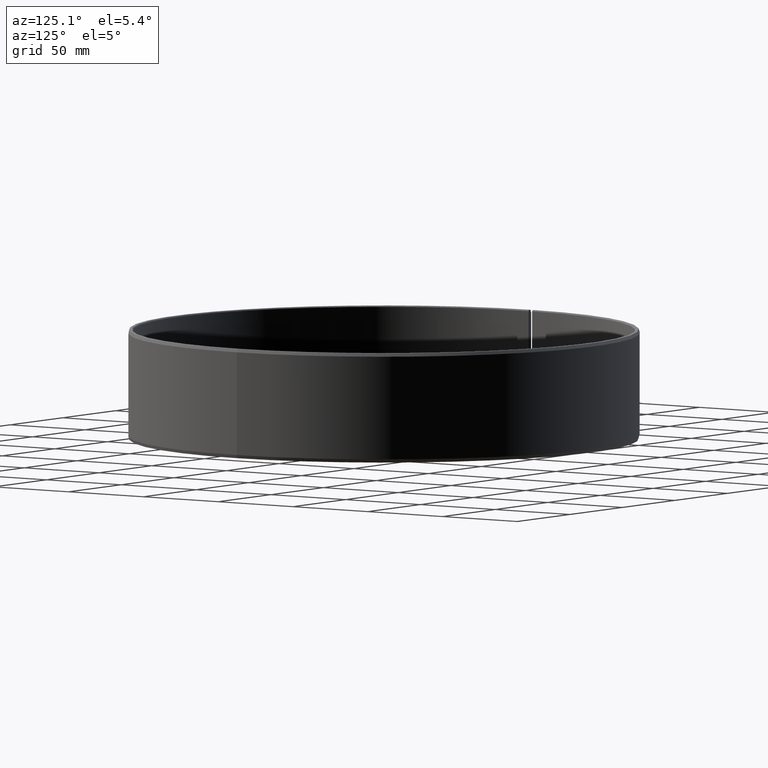
[diagram: clean part render]
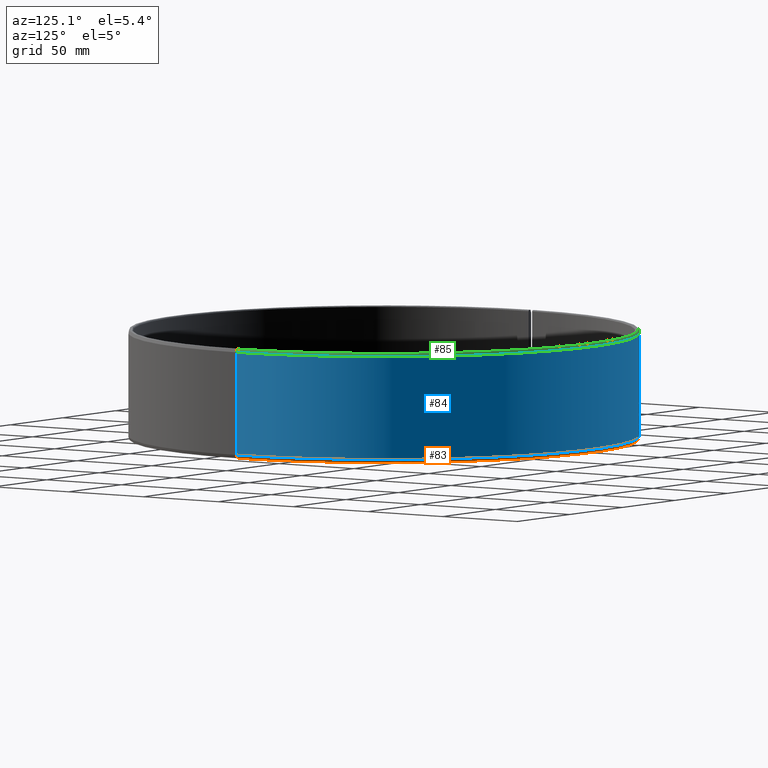
[diagram: same view with three faces highlighted in distinct colors, each labeled with its STEP entity id]
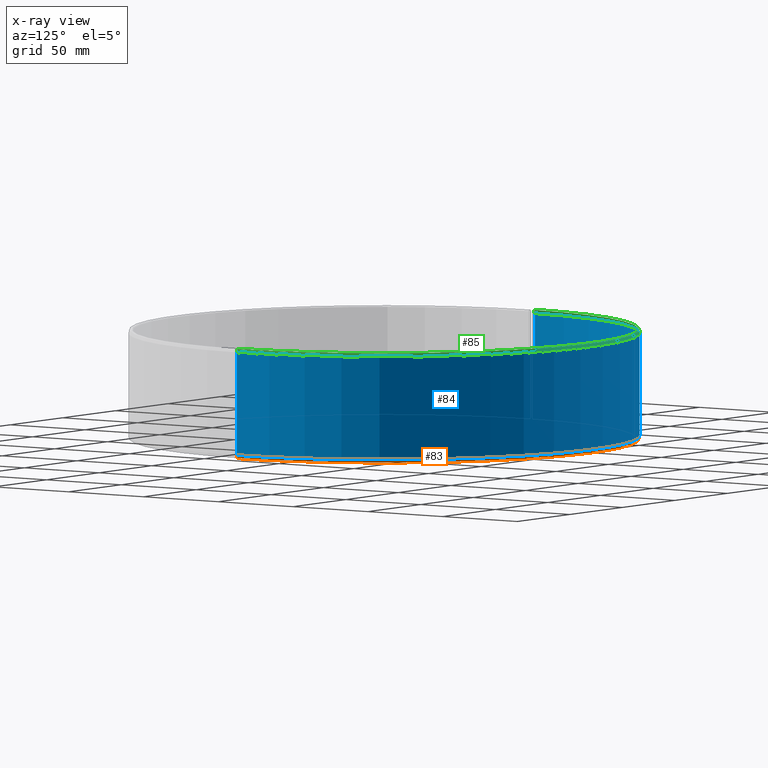
[diagram: x-ray of the same camera — body ghosted, the three highlighted faces saturated]
A machine part, auxiliary view with three faces highlighted in distinct colors.
The next image is the same camera in x-ray (body ghosted, the three faces saturated) — at least one of them is partly hidden behind the body in this view.
Their STEP definitions:

[orange] entity #83 — the highlighted conical surface has half-angle 20 deg.
#83=ADVANCED_FACE('',(#108),#109,.T.);
#108=FACE_OUTER_BOUND('',#140,.T.);
#109=CONICAL_SURFACE('',#141,139.67242678916,0.349065850398864);
#140=EDGE_LOOP('',(#214,#215,#216,#217));
#141=AXIS2_PLACEMENT_3D('',#218,#219,#220);
#214=ORIENTED_EDGE('',*,*,#294,.T.);
#215=ORIENTED_EDGE('',*,*,#304,.T.);
#216=ORIENTED_EDGE('',*,*,#306,.T.);
#217=ORIENTED_EDGE('',*,*,#307,.F.);
#218=CARTESIAN_POINT('',(8.47140465882379E-016,-1.2527780583096E-015,0.900000000000009));
#219=DIRECTION('',(5.48707263966375E-016,-6.09939603923743E-016,1.0));
#220=DIRECTION('',(-1.0,1.89882151931499E-015,5.48707263966376E-016));
#294=EDGE_CURVE('',#339,#344,#345,.T.);
#304=EDGE_CURVE('',#344,#359,#361,.T.);
#306=EDGE_CURVE('',#359,#363,#364,.T.);
#307=EDGE_CURVE('',#339,#363,#365,.T.);
#339=VERTEX_POINT('',#407);
#344=VERTEX_POINT('',#414);
#345=LINE('',#415,#416);
#359=VERTEX_POINT('',#434);
#361=CIRCLE('',#437,139.344853578321);
#363=VERTEX_POINT('',#440);
#364=LINE('',#441,#442);
#365=CIRCLE('',#443,140.0);
#407=CARTESIAN_POINT('',(140.0,-2.84781791594002E-013,1.79999999999993));
#414=CARTESIAN_POINT('',(139.344853578321,-2.82359661886324E-013,-5.72526750287405E-014));
#415=CARTESIAN_POINT('',(139.67242678916,-2.83570726740163E-013,0.899999999999932));
#416=VECTOR('',#490,1.0);
#434=CARTESIAN_POINT('',(-139.323630682189,2.43190301959289,9.70211942097148E-014));
#437=AXIS2_PLACEMENT_3D('',#508,#509,#510);
#440=CARTESIAN_POINT('',(-139.978677321895,2.44333690121997,1.80000000000009));
#441=CARTESIAN_POINT('',(-139.323630682189,2.43190301959289,9.48773650046982E-014));
#442=VECTOR('',#512,10.0);
#443=AXIS2_PLACEMENT_3D('',#513,#514,#515);
#490=DIRECTION('',(-0.342020143325667,1.26447634049496E-015,-0.939692620785909));
#508=CARTESIAN_POINT('',(3.53303928312648E-016,-7.58941520739863E-016,1.91641236067366E-014));
#509=DIRECTION('',(5.48707263966375E-016,-6.09939603923743E-016,1.0));
#510=DIRECTION('',(-1.0,1.89882151931499E-015,5.48707263966376E-016));
#512=DIRECTION('',(-0.341968052001226,0.00596907455105765,0.939692620785909));
#513=CARTESIAN_POINT('',(1.34097700345212E-015,-1.74661459587933E-015,1.80000000000001));
#514=DIRECTION('',(5.48707263966375E-016,-6.09939603923743E-016,1.0));
#515=DIRECTION('',(-1.0,1.89882151931499E-015,5.48707263966376E-016));

[blue] entity #84 — the highlighted cylindrical surface (partial cylindrical patch) has radius 140 mm, axis along (0, -0, 1).
#84=ADVANCED_FACE('',(#110),#111,.T.);
#110=FACE_OUTER_BOUND('',#142,.T.);
#111=CYLINDRICAL_SURFACE('',#143,140.0);
#142=EDGE_LOOP('',(#221,#222,#223,#224));
#143=AXIS2_PLACEMENT_3D('',#225,#226,#227);
#221=ORIENTED_EDGE('',*,*,#291,.T.);
#222=ORIENTED_EDGE('',*,*,#307,.T.);
#223=ORIENTED_EDGE('',*,*,#308,.T.);
#224=ORIENTED_EDGE('',*,*,#309,.F.);
#225=CARTESIAN_POINT('',(1.68145218473039E-014,-1.94406054889814E-014,30.0));
#226=DIRECTION('',(5.48707263966375E-016,-6.09939603923743E-016,1.0));
#227=DIRECTION('',(-1.0,1.89882151931499E-015,5.48707263966376E-016));
#291=EDGE_CURVE('',#332,#339,#340,.T.);
#307=EDGE_CURVE('',#339,#363,#365,.T.);
#308=EDGE_CURVE('',#363,#366,#367,.T.);
#309=EDGE_CURVE('',#332,#366,#368,.T.);
#332=VERTEX_POINT('',#398);
#339=VERTEX_POINT('',#407);
#340=LINE('',#408,#409);
#363=VERTEX_POINT('',#440);
#365=CIRCLE('',#443,140.0);
#366=VERTEX_POINT('',#444);
#367=LINE('',#445,#446);
#368=CIRCLE('',#447,140.0);
#398=CARTESIAN_POINT('',(140.0,-3.19620970211792E-013,58.1999999999999));
#407=CARTESIAN_POINT('',(140.0,-2.84781791594002E-013,1.79999999999993));
#408=CARTESIAN_POINT('',(140.0,-3.02420673381142E-013,29.9999999999999));
#409=VECTOR('',#485,1.0);
#440=CARTESIAN_POINT('',(-139.978677321895,2.44333690121997,1.80000000000009));
#443=AXIS2_PLACEMENT_3D('',#513,#514,#515);
#444=CARTESIAN_POINT('',(-139.978677321895,2.44333690121993,58.2000000000001));
#445=CARTESIAN_POINT('',(-139.978677321895,2.44333690121996,1.80000000000008));
#446=VECTOR('',#516,10.0);
#447=AXIS2_PLACEMENT_3D('',#517,#518,#519);
#485=DIRECTION('',(-5.48707263966375E-016,6.09939603923743E-016,-1.0));
#513=CARTESIAN_POINT('',(1.34097700345212E-015,-1.74661459587933E-015,1.80000000000001));
#514=DIRECTION('',(5.48707263966375E-016,-6.09939603923743E-016,1.0));
#515=DIRECTION('',(-1.0,1.89882151931499E-015,5.48707263966376E-016));
#516=DIRECTION('',(5.48401726752417E-016,-6.27443819188125E-016,1.0));
#517=CARTESIAN_POINT('',(3.22880666911556E-014,-3.71345963820835E-014,58.2));
#518=DIRECTION('',(5.48707263966375E-016,-6.09939603923743E-016,1.0));
#519=DIRECTION('',(-1.0,1.89882151931499E-015,5.48707263966376E-016));

[green] entity #85 — the highlighted conical surface has half-angle 20 deg.
#85=ADVANCED_FACE('',(#112),#113,.T.);
#112=FACE_OUTER_BOUND('',#144,.T.);
#113=CONICAL_SURFACE('',#145,139.67242678916,0.349065850398861);
#144=EDGE_LOOP('',(#228,#229,#230,#231));
#145=AXIS2_PLACEMENT_3D('',#232,#233,#234);
#228=ORIENTED_EDGE('',*,*,#287,.T.);
#229=ORIENTED_EDGE('',*,*,#309,.T.);
#230=ORIENTED_EDGE('',*,*,#310,.T.);
#231=ORIENTED_EDGE('',*,*,#311,.F.);
#232=CARTESIAN_POINT('',(3.27819032287254E-014,-3.76284329196533E-014,59.1));
#233=DIRECTION('',(-5.48707263966375E-016,6.09939603923743E-016,-1.0));
#234=DIRECTION('',(-1.0,1.89882151931499E-015,5.48707263966376E-016));
#287=EDGE_CURVE('',#331,#332,#333,.T.);
#309=EDGE_CURVE('',#332,#366,#368,.T.);
#310=EDGE_CURVE('',#366,#369,#370,.T.);
#311=EDGE_CURVE('',#331,#369,#371,.T.);
#331=VERTEX_POINT('',#397);
#332=VERTEX_POINT('',#398);
#333=LINE('',#399,#400);
#366=VERTEX_POINT('',#444);
#368=CIRCLE('',#447,140.0);
#369=VERTEX_POINT('',#448);
#370=LINE('',#449,#450);
#371=CIRCLE('',#451,139.344853578321);
#397=CARTESIAN_POINT('',(139.344853578321,-3.19833208034731E-013,59.9999999999999));
#398=CARTESIAN_POINT('',(140.0,-3.19620970211792E-013,58.1999999999999));
#399=CARTESIAN_POINT('',(139.67242678916,-3.19946381601507E-013,59.0999999999999));
#400=VECTOR('',#477,1.0);
#444=CARTESIAN_POINT('',(-139.978677321895,2.44333690121993,58.2000000000001));
#447=AXIS2_PLACEMENT_3D('',#517,#518,#519);
#448=CARTESIAN_POINT('',(-139.323630682189,2.43190301959285,60.0000000000001));
#449=CARTESIAN_POINT('',(-139.978677321895,2.44333690121993,58.2000000000001));
#450=VECTOR('',#520,10.0);
#451=AXIS2_PLACEMENT_3D('',#521,#522,#523);
#477=DIRECTION('',(0.342020143325663,-1.18164850630513E-016,-0.93969262078591));
#517=CARTESIAN_POINT('',(3.22880666911556E-014,-3.71345963820835E-014,58.2));
#518=DIRECTION('',(5.48707263966375E-016,-6.09939603923743E-016,1.0));
#519=DIRECTION('',(-1.0,1.89882151931499E-015,5.48707263966376E-016));
#520=DIRECTION('',(0.341968052001224,-0.00596907455105863,0.93969262078591));
#521=CARTESIAN_POINT('',(3.32757397662951E-014,-3.8122269457223E-014,60.0));
#522=DIRECTION('',(5.48707263966375E-016,-6.09939603923743E-016,1.0));
#523=DIRECTION('',(-1.0,1.89882151931499E-015,5.48707263966376E-016));